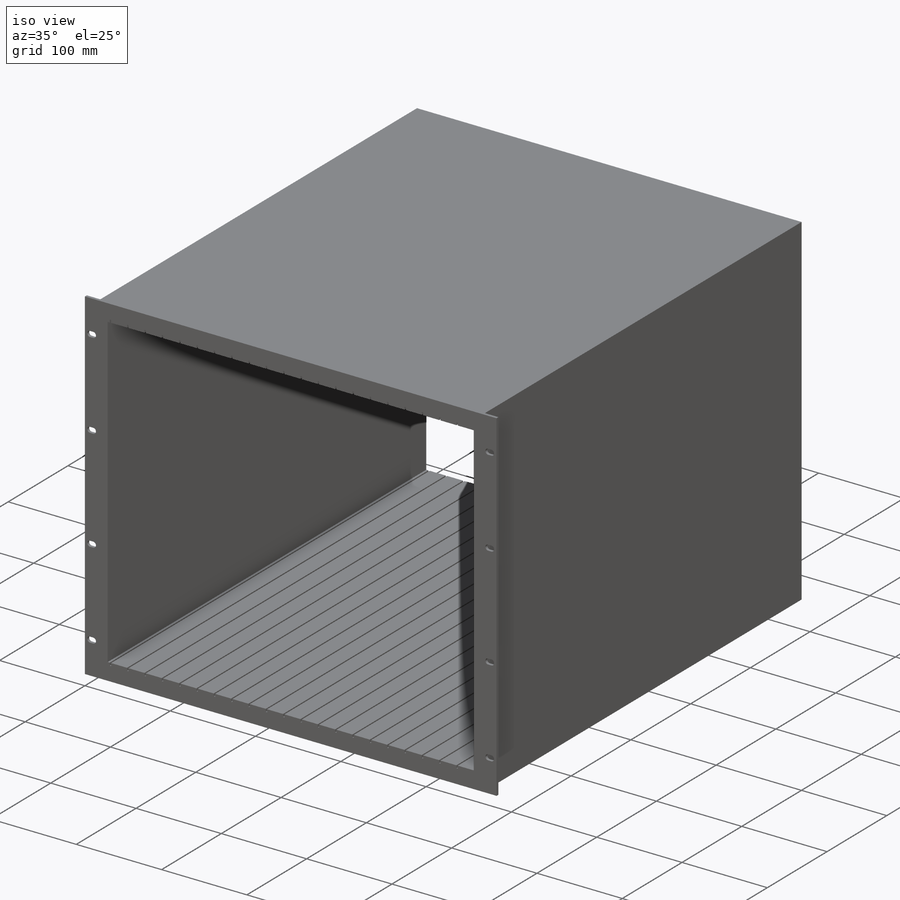
[diagram: iso view]
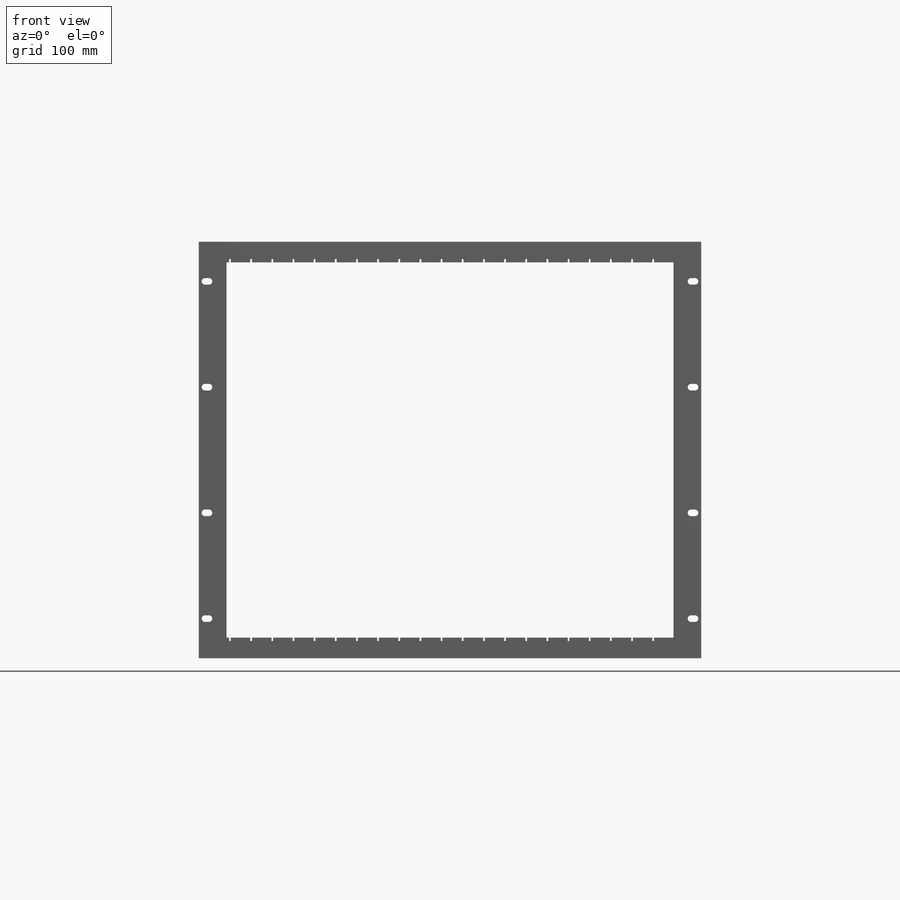
[diagram: front view]
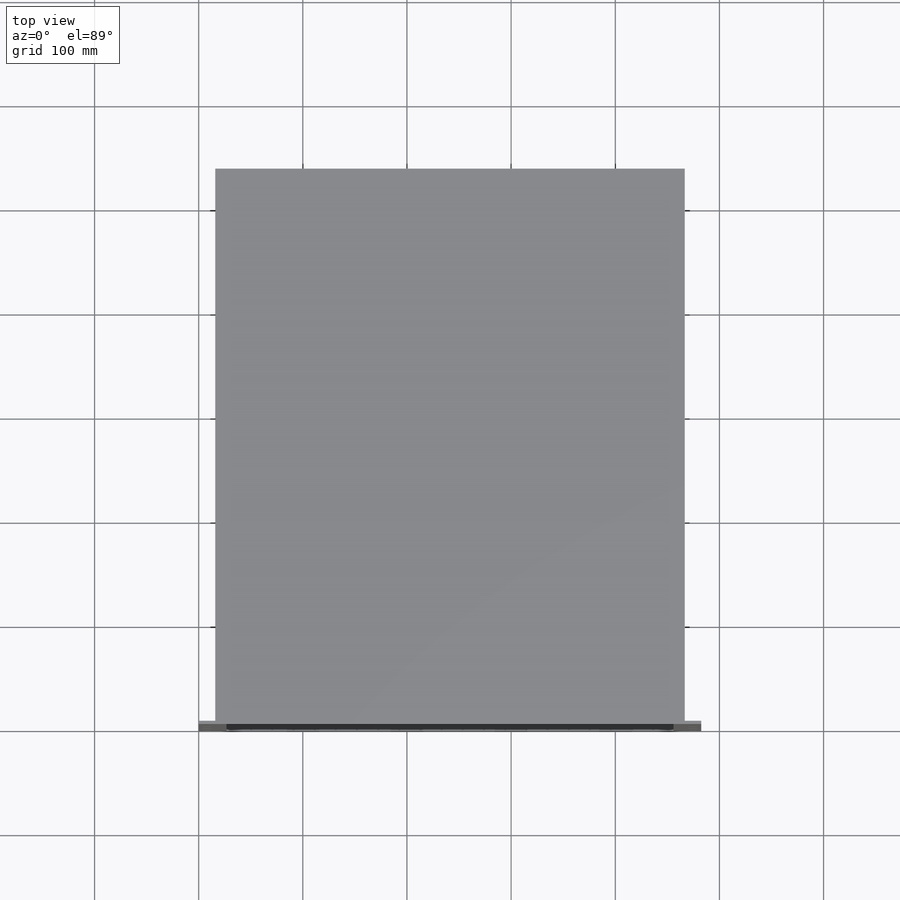
[diagram: top view]
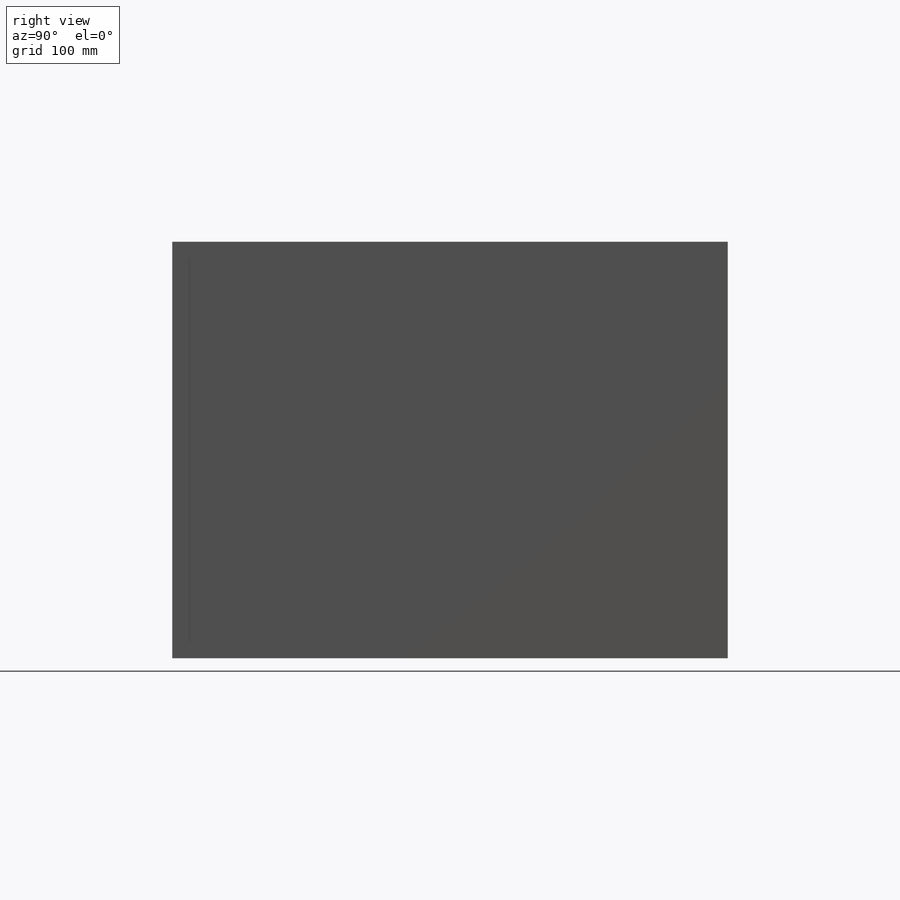
[diagram: right view]
SOLIDWORKS PART (.sldprt)
format: sldprt  version: not decoded by parser v0  size: 519,168 bytes
history: native  units: mm
features: sketch x8, extrude x2, cut_extrude x2, hole x2, material x1, mirror x1 (+13 scaffold rows collapsed)
feature tree (29):
  scaffold x13  (default folders/planes/origin — collapsed)
  material  "Material <not specified>"
  sketch  "Sketch1"  dims[D1=482.6mm D2=533.4mm]
  extrude  "Boss-Extrude1"  Depth=19.8374mm
  sketch  "Sketch3"  dims[D1=26.67mm D2=26.67mm]
  extrude  "Boss-Extrude2"  Depth=180.1876mm
  sketch  "Sketch2"  dims[c1.D1=48.26mm c1.D2=1.5875mm c2.D1=2.54mm c2.D4=1.5875mm c2.D5=20.32mm c2.D6=533.4mm c3.D4=533.4mm c3.D3=21.0]
  cut_extrude  "Cut-Extrude1"  Depth=3.175mm
  mirror  "Mirror1"
  sketch  "Sketch4"  dims[D1=450.85mm D2=3.175mm]
  cut_extrude  "Cut-Extrude2"  [1 undecoded]
  hole  "Tap Drill Slot for #10-24 Tap1"  Diameter=6.35mm Depth=3.175mm
  sketch  "Sketch6"  dims[D1=10.16mm D2=38.1mm D3=101.6mm D4=120.65mm D5=101.6mm D6=233.3625mm]
  sketch  "Sketch5"  dims[hole-wizard template sketch: 47 standard entries collapsed; hole parameters kept: c15.Hole Depth=3.175mm c15.D3=~14.816244mm c15.Drill Angle=118.0deg]
  hole  "Tap Drill Slot for #10-24 Tap2"  Diameter=6.35mm Depth=558.80005mm
  sketch  "Sketch7"  dims[D1=10.16mm]
  sketch  "Sketch8"  dims[Thru Hole Dia.=6.35mm Thru Hole Depth=~558.80005mm]
decode coverage: 13 of 15 modeling features carry decoded parameters
note: ~ marks probable driven/reference dimensions
note: 1 parameter value undecoded
note: suppression state not decoded; provenance and decode notes live in map.json
